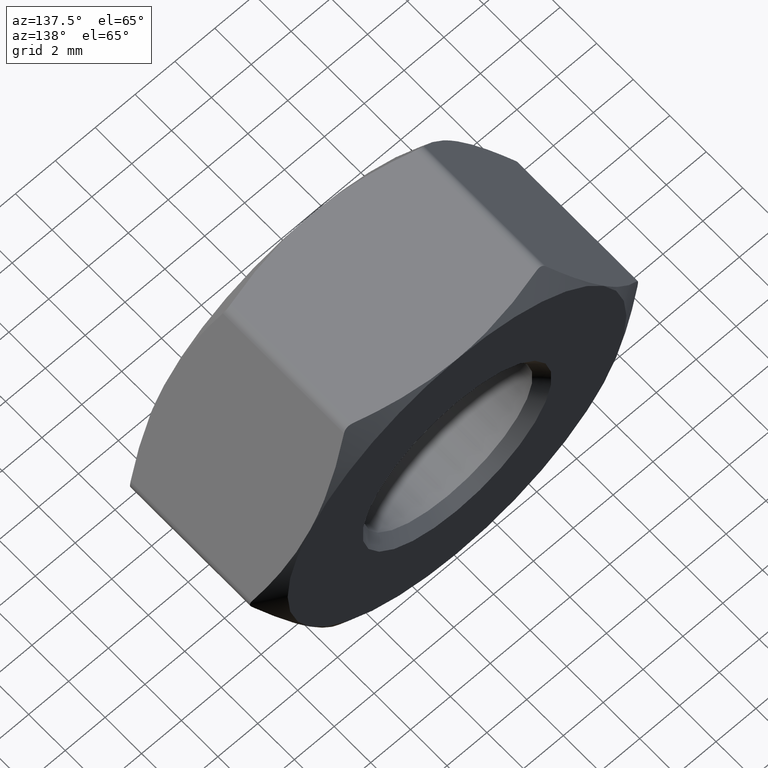
[diagram: clean part render]
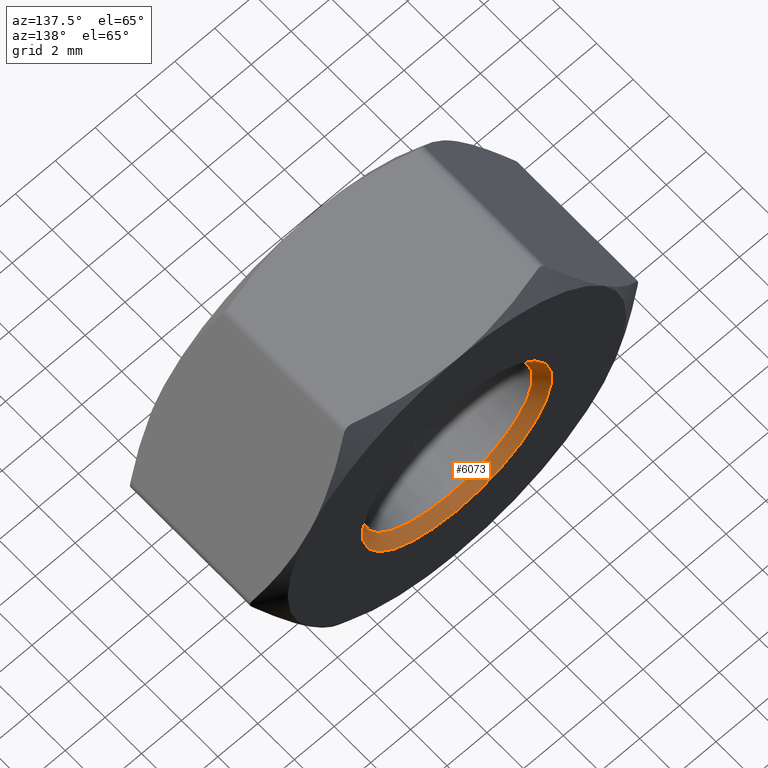
[diagram: same view with one face highlighted and labeled with its STEP entity id]
A machine part, auxiliary view. The second image highlights one B-rep face of the part: STEP entity #6073.
In plain terms, the highlighted conical surface has half-angle 45 deg.
Its self-contained STEP definition (entity closure, byte-faithful):
#1303 = DIRECTION ( 'NONE',  ( 0.0000000000000000000, 0.0000000000000000000, 1.000000000000000000 ) ) ;
#1426 = CONICAL_SURFACE ( 'NONE', #4904, 4.249999999999998200, 0.7853981633974473900 ) ;
#2219 = FACE_OUTER_BOUND ( 'NONE', #4757, .T. ) ;
#2448 = CARTESIAN_POINT ( 'NONE',  ( 0.0000000000000000000, 3.499999999999990200, 4.249999999999998200 ) ) ;
#3209 = EDGE_CURVE ( 'NONE', #12985, #12985, #4916, .T. ) ;
#4083 = ORIENTED_EDGE ( 'NONE', *, *, #5753, .F. ) ;
#4757 = EDGE_LOOP ( 'NONE', ( #4083 ) ) ;
#4904 = AXIS2_PLACEMENT_3D ( 'NONE', #4975, #11306, #13723 ) ;
#4916 = CIRCLE ( 'NONE', #12303, 4.249999999999998200 ) ;
#4941 = DIRECTION ( 'NONE',  ( -0.0000000000000000000, -1.000000000000000000, -0.0000000000000000000 ) ) ;
#4975 = CARTESIAN_POINT ( 'NONE',  ( 0.0000000000000000000, 3.499999999999990200, 0.0000000000000000000 ) ) ;
#5753 = EDGE_CURVE ( 'NONE', #7033, #7033, #6018, .T. ) ;
#6018 = CIRCLE ( 'NONE', #12318, 4.750000000000008000 ) ;
#6073 = ADVANCED_FACE ( 'NONE', ( #2219, #7960 ), #1426, .F. ) ;
#6896 = DIRECTION ( 'NONE',  ( 0.0000000000000000000, 0.0000000000000000000, 1.000000000000000000 ) ) ;
#7033 = VERTEX_POINT ( 'NONE', #13585 ) ;
#7960 = FACE_BOUND ( 'NONE', #13688, .T. ) ;
#8656 = CARTESIAN_POINT ( 'NONE',  ( 0.0000000000000000000, 4.000000000000000000, 0.0000000000000000000 ) ) ;
#11306 = DIRECTION ( 'NONE',  ( 0.0000000000000000000, 1.000000000000000000, 0.0000000000000000000 ) ) ;
#12303 = AXIS2_PLACEMENT_3D ( 'NONE', #14242, #15311, #6896 ) ;
#12318 = AXIS2_PLACEMENT_3D ( 'NONE', #8656, #4941, #1303 ) ;
#12985 = VERTEX_POINT ( 'NONE', #2448 ) ;
#13585 = CARTESIAN_POINT ( 'NONE',  ( 0.0000000000000000000, 4.000000000000000000, 4.750000000000008000 ) ) ;
#13688 = EDGE_LOOP ( 'NONE', ( #14338 ) ) ;
#13723 = DIRECTION ( 'NONE',  ( 0.0000000000000000000, 0.0000000000000000000, 1.000000000000000000 ) ) ;
#14242 = CARTESIAN_POINT ( 'NONE',  ( 0.0000000000000000000, 3.499999999999990200, 0.0000000000000000000 ) ) ;
#14338 = ORIENTED_EDGE ( 'NONE', *, *, #3209, .F. ) ;
#15311 = DIRECTION ( 'NONE',  ( 0.0000000000000000000, 1.000000000000000000, 0.0000000000000000000 ) ) ;